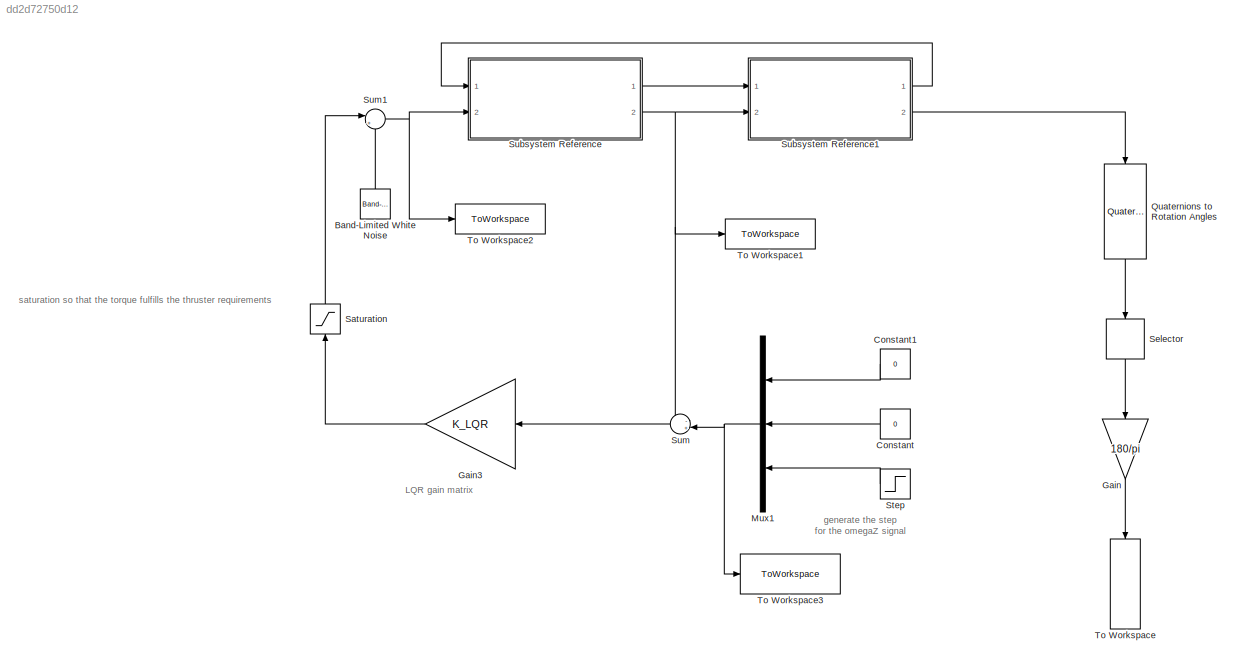
MODEL slx_dd2d72750d12
KIND model
CONFIG AbsTol = auto
CONFIG EnableMultiTasking = off
CONFIG FixedStep = auto
CONFIG MaxStep = auto
CONFIG MinStep = auto
CONFIG RelTol = 1e-3
CONFIG SampleTimeConstraint = Unconstrained
CONFIG SolverName = VariableStepAuto
CONFIG StartTime = 0.0
CONFIG StopTime = 1000
BLOCK [Reference] Band-Limited White Noise  REF=simulink/Sources/Band-Limited
White Noise
  NameLocation = right
  Ports = [0, 1]
  SourceBlock = simulink/Sources/Band-Limited\nWhite Noise
  SourceProductBaseCode = SL
  SourceType = Band-Limited White Noise.
BLOCK [Constant] Constant
  NameLocation = top
  Value = 0
BLOCK [Constant] Constant1
  NameLocation = top
  Value = 0
BLOCK [Gain] Gain
  Gain = 180/pi
  NameLocation = left
BLOCK [Gain] Gain3
  Gain = K_LQR
  Multiplication = Matrix(K*u)
  NameLocation = top
BLOCK [Mux] Mux1
  DisplayOption = bar
  Inputs = 3
  NameLocation = top
  Ports = [3, 1]
BLOCK [Reference] Quaternions to Rotation Angles  REF=sharedtransform/Quaternions to Rotation Angles
  AttributesFormatString = Rotation Order: %<rotationOrder>
  NameLocation = left
  Ports = [1, 1]
  SourceBlock = sharedtransform/Quaternions to Rotation Angles
  SourceProductBaseCode = AE,PW,DR,MT,UV,VE
  SourceType = Quat2Ang
BLOCK [Saturate] Saturation
  LowerLimit = -Tmax
  NameLocation = right
  UpperLimit = Tmax
BLOCK [Selector] Selector
  IndexOptions = Index vector (dialog)
  Indices = [1]
  InputPortWidth = 3
  NameLocation = left
  OutputSizes = 1
  Ports = [1, 1]
BLOCK [Step] Step
  After = wz_desired
  NameLocation = top
  SampleTime = 0
  Time = 0
BLOCK [SubSystem] Subsystem Reference
  Ports = [2, 2]
  ReferencedSubsystem = Dynamics
  RequestExecContextInheritance = off
BLOCK [SubSystem] Subsystem Reference1
  Ports = [2, 2]
  ReferencedSubsystem = Kinematics
  RequestExecContextInheritance = off
BLOCK [Sum] Sum
  Inputs = -+|
  NameLocation = top
  Ports = [2, 1]
BLOCK [Sum] Sum1
  Inputs = |++
  Ports = [2, 1]
BLOCK [ToWorkspace] To Workspace
  FixptAsFi = on
  MaxDataPoints = inf
  NameLocation = left
  Ports = [1]
  SampleTime = -1
  SaveFormat = Timeseries
  VariableName = yaw
BLOCK [ToWorkspace] To Workspace1
  FixptAsFi = on
  MaxDataPoints = inf
  Ports = [1]
  SampleTime = -1
  SaveFormat = Timeseries
  VariableName = omega
BLOCK [ToWorkspace] To Workspace2
  FixptAsFi = on
  MaxDataPoints = inf
  Ports = [1]
  SampleTime = -1
  SaveFormat = Timeseries
  VariableName = Torque
BLOCK [ToWorkspace] To Workspace3
  FixptAsFi = on
  MaxDataPoints = inf
  Ports = [1]
  SampleTime = -1
  SaveFormat = Timeseries
  VariableName = omega_step
ANNOTATION (root): LQR gain matrix
ANNOTATION (root): generate the step for the omegaZ signal
ANNOTATION (root): saturation so that the torque fulfills the thruster requirements
LINE Band-Limited White Noise:1 -> Sum1:2
LINE Constant1:1 -> Mux1:1
LINE Constant:1 -> Mux1:2
LINE Gain3:1 -> Saturation:1
LINE Gain:1 -> To Workspace:1
NET Mux1:1 -> Sum:2, To Workspace3:1
LINE Quaternions to Rotation Angles:1 -> Selector:1
LINE Saturation:1 -> Sum1:1
LINE Selector:1 -> Gain:1
LINE Step:1 -> Mux1:3
LINE Subsystem Reference1:1 -> Subsystem Reference:1
LINE Subsystem Reference1:2 -> Quaternions to Rotation Angles:1
LINE Subsystem Reference:1 -> Subsystem Reference1:1
NET Subsystem Reference:2 -> Subsystem Reference1:2, Sum:1, To Workspace1:1
NET Sum1:1 -> Subsystem Reference:2, To Workspace2:1
LINE Sum:1 -> Gain3:1
note: NET lines group one-source signal fan-out (src -> all destinations, sorted); 1:1 wires keep LINE
